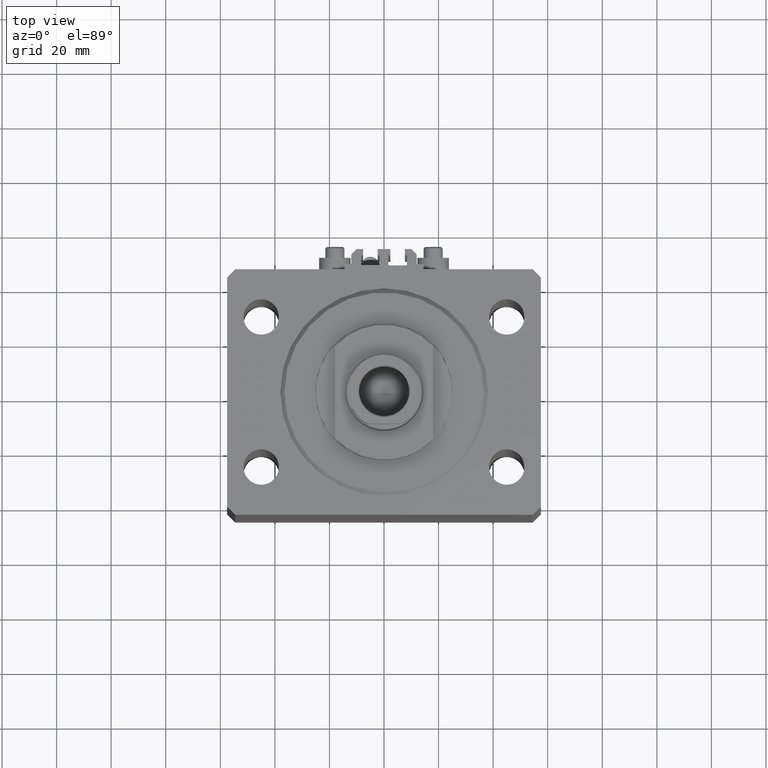
[diagram: clean part render]
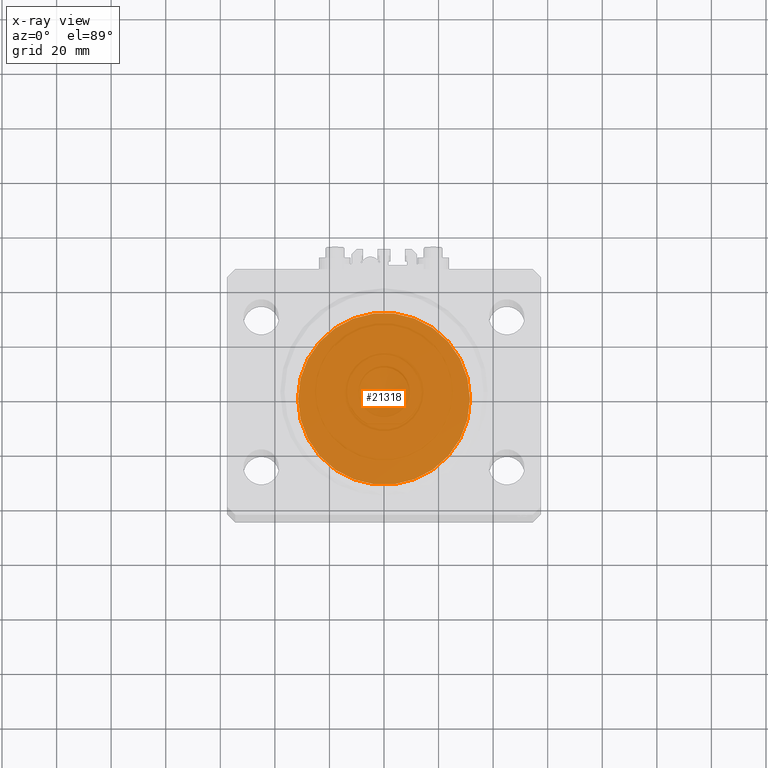
[diagram: x-ray — body ghosted, one internal face saturated and labeled with its STEP entity id]
A machine part, top view, then the same camera in x-ray: the body is ghosted and one INTERNAL B-rep face — a face not visible from any outside direction — is saturated and labeled: STEP entity #21318.
In plain terms, the highlighted planar face has unit normal (0, 0, 1).
Its self-contained STEP definition (entity closure, byte-faithful):
#17 = EDGE_CURVE ( 'NONE', #35951, #18137, #19255, .T. ) ;
#317 = CIRCLE ( 'NONE', #15054, 31.50000000000000000 ) ;
#1027 = DIRECTION ( 'NONE',  ( 1.000000000000000000, 0.000000000000000000, -0.000000000000000000 ) ) ;
#1425 = AXIS2_PLACEMENT_3D ( 'NONE', #37828, #38294, #27109 ) ;
#3782 = CARTESIAN_POINT ( 'NONE',  ( 31.50000000000000000, 3.857637417314162689E-15, 0.000000000000000000 ) ) ;
#4667 = DIRECTION ( 'NONE',  ( 0.000000000000000000, 0.000000000000000000, 1.000000000000000000 ) ) ;
#7426 = CARTESIAN_POINT ( 'NONE',  ( 0.000000000000000000, 0.000000000000000000, 0.000000000000000000 ) ) ;
#12197 = PLANE ( 'NONE',  #33855 ) ;
#14507 = ORIENTED_EDGE ( 'NONE', *, *, #17, .F. ) ;
#14511 = EDGE_LOOP ( 'NONE', ( #17372, #14507 ) ) ;
#15054 = AXIS2_PLACEMENT_3D ( 'NONE', #7426, #18613, #44919 ) ;
#17372 = ORIENTED_EDGE ( 'NONE', *, *, #35915, .F. ) ;
#18137 = VERTEX_POINT ( 'NONE', #40161 ) ;
#18613 = DIRECTION ( 'NONE',  ( 0.000000000000000000, 0.000000000000000000, 1.000000000000000000 ) ) ;
#19255 = CIRCLE ( 'NONE', #1425, 31.50000000000000000 ) ;
#21318 = ADVANCED_FACE ( 'NONE', ( #42140 ), #12197, .F. ) ;
#27109 = DIRECTION ( 'NONE',  ( 1.000000000000000000, 0.000000000000000000, 0.000000000000000000 ) ) ;
#33855 = AXIS2_PLACEMENT_3D ( 'NONE', #34830, #4667, #1027 ) ;
#34830 = CARTESIAN_POINT ( 'NONE',  ( 0.000000000000000000, 0.000000000000000000, 0.000000000000000000 ) ) ;
#35915 = EDGE_CURVE ( 'NONE', #18137, #35951, #317, .T. ) ;
#35951 = VERTEX_POINT ( 'NONE', #3782 ) ;
#37828 = CARTESIAN_POINT ( 'NONE',  ( 0.000000000000000000, 0.000000000000000000, 0.000000000000000000 ) ) ;
#38294 = DIRECTION ( 'NONE',  ( 0.000000000000000000, 0.000000000000000000, 1.000000000000000000 ) ) ;
#40161 = CARTESIAN_POINT ( 'NONE',  ( -31.50000000000000000, 0.000000000000000000, 0.000000000000000000 ) ) ;
#42140 = FACE_OUTER_BOUND ( 'NONE', #14511, .T. ) ;
#44919 = DIRECTION ( 'NONE',  ( 1.000000000000000000, 0.000000000000000000, 0.000000000000000000 ) ) ;